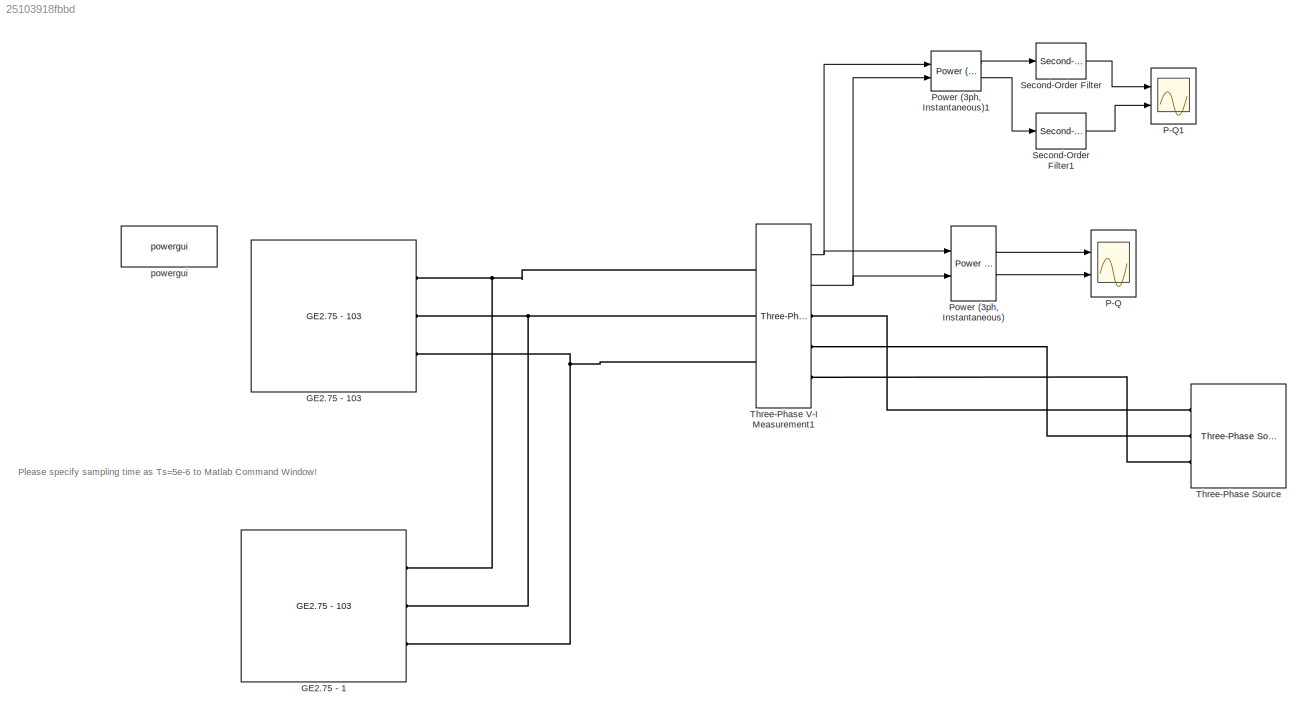
MODEL slx_25103918fbbd
KIND model
CONFIG AbsTol = auto
CONFIG FixedStep = auto
CONFIG MaxStep = auto
CONFIG MinStep = auto
CONFIG RelTol = 1e-3
CONFIG SampleTimeConstraint = Unconstrained
CONFIG Solver = VariableStepAuto
CONFIG SolverMode = Auto
CONFIG SolverName = VariableStepAuto
CONFIG StartTime = 0.0
CONFIG StopTime = 25
BLOCK [Reference] GE2.75 - 1  REF=GE_275_103/GE2.75 - 103
  Ports = [0, 0, 0, 0, 0, 0, 3]
  SourceBlock = GE_275_103/GE2.75 - 103
BLOCK [Reference] GE2.75 - 103  REF=GE_275_103/GE2.75 - 103
  Ports = [0, 0, 0, 0, 0, 0, 3]
  SourceBlock = GE_275_103/GE2.75 - 103
BLOCK [Scope] P-Q
  NumInputPorts = 2
  Ports = [2]
  ScopeSpecificationString = Simulink.scopes.TimeScopeBlockCfg('CurrentConfiguration', extmgr.ConfigurationSet(extmgr.Configuration('Core','General UI',true),extmgr.Configuration('Core','Source UI',true),extmgr.Configuration('Sources','WiredSimulink',true,'DataLoggingVariableName','ScopeData1'),extmgr.Configuration('Visuals','Time Domain',true,'SerializedDisplays',{struct('MinYLimReal','-1663023.65983','MaxYLimReal','1124283....<+1483ch>
BLOCK [Scope] P-Q1
  NumInputPorts = 2
  Ports = [2]
  ScopeSpecificationString = Simulink.scopes.TimeScopeBlockCfg('CurrentConfiguration', extmgr.ConfigurationSet(extmgr.Configuration('Core','General UI',true),extmgr.Configuration('Core','Source UI',true),extmgr.Configuration('Sources','WiredSimulink',true),extmgr.Configuration('Visuals','Time Domain',true,'SerializedDisplays',{struct('MinYLimReal','-8107284.85445','MaxYLimReal','6389295.28878','YLabelReal','','MinYLimMag','  ...<+1479ch>
BLOCK [Reference] Power (3ph, Instantaneous)  REF=powerlib_meascontrol/Measurements/Power
(3ph, Instantaneous)
  Ports = [2, 2]
  SourceBlock = powerlib_meascontrol/Measurements/Power\n(3ph, Instantaneous)
  SourceType = Power (3ph, Instantaneous)
BLOCK [Reference] Power (3ph, Instantaneous)1  REF=powerlib_meascontrol/Measurements/Power
(3ph, Instantaneous)
  Ports = [2, 2]
  SourceBlock = powerlib_meascontrol/Measurements/Power\n(3ph, Instantaneous)
  SourceType = Power (3ph, Instantaneous)
BLOCK [Reference] Second-Order Filter  REF=powerlib_meascontrol/Filters/Second-Order
Filter
  Ports = [1, 1]
  SourceBlock = powerlib_meascontrol/Filters/Second-Order\nFilter
  SourceType = Second-Order Filter
BLOCK [Reference] Second-Order Filter1  REF=powerlib_meascontrol/Filters/Second-Order
Filter
  Ports = [1, 1]
  SourceBlock = powerlib_meascontrol/Filters/Second-Order\nFilter
  SourceType = Second-Order Filter
BLOCK [Reference] Three-Phase Source  REF=powerlib/Electrical
Sources/Three-Phase Source
  Ports = [0, 0, 0, 0, 0, 0, 3]
  SourceBlock = powerlib/Electrical\nSources/Three-Phase Source
  SourceType = Three-Phase Source
BLOCK [Reference] Three-Phase V-I Measurement1  REF=powerlib/Measurements/Three-Phase
V-I Measurement
  Ports = [0, 2, 0, 0, 0, 3, 3]
  SourceBlock = powerlib/Measurements/Three-Phase\nV-I Measurement
  SourceType = Three-Phase VI Measurement
BLOCK [Reference] powergui  REF=powerlib/powergui
  Ports = []
  Priority = 2
  SourceBlock = powerlib/powergui
  SourceType = PSB option menu block
ANNOTATION (root): Please specify sampling time as Ts=5e-6 to Matlab Command Window!
LINE Power (3ph, Instantaneous)1:1 -> Second-Order Filter:1
LINE Power (3ph, Instantaneous)1:2 -> Second-Order Filter1:1
LINE Power (3ph, Instantaneous):1 -> P-Q:1
LINE Power (3ph, Instantaneous):2 -> P-Q:2
LINE Second-Order Filter1:1 -> P-Q1:2
LINE Second-Order Filter:1 -> P-Q1:1
NET Three-Phase V-I Measurement1:1 -> Power (3ph, Instantaneous)1:1, Power (3ph, Instantaneous):1
NET Three-Phase V-I Measurement1:2 -> Power (3ph, Instantaneous)1:2, Power (3ph, Instantaneous):2
PNET net1: GE2.75 - 103:RConn1 -- GE2.75 - 1:RConn1 -- Three-Phase V-I Measurement1:LConn1
PNET net2: GE2.75 - 103:RConn2 -- GE2.75 - 1:RConn2 -- Three-Phase V-I Measurement1:LConn2
PNET net3: GE2.75 - 103:RConn3 -- GE2.75 - 1:RConn3 -- Three-Phase V-I Measurement1:LConn3
PLINE Three-Phase Source:RConn1 -- Three-Phase V-I Measurement1:RConn1
PLINE Three-Phase Source:RConn2 -- Three-Phase V-I Measurement1:RConn2
PLINE Three-Phase Source:RConn3 -- Three-Phase V-I Measurement1:RConn3
note: NET lines group one-source signal fan-out (src -> all destinations, sorted); 1:1 wires keep LINE; PNET lines group multi-terminal physical nets as a canonical sorted terminal list (undirected conserving connections); 2-terminal nets keep the pairwise PLINE form
